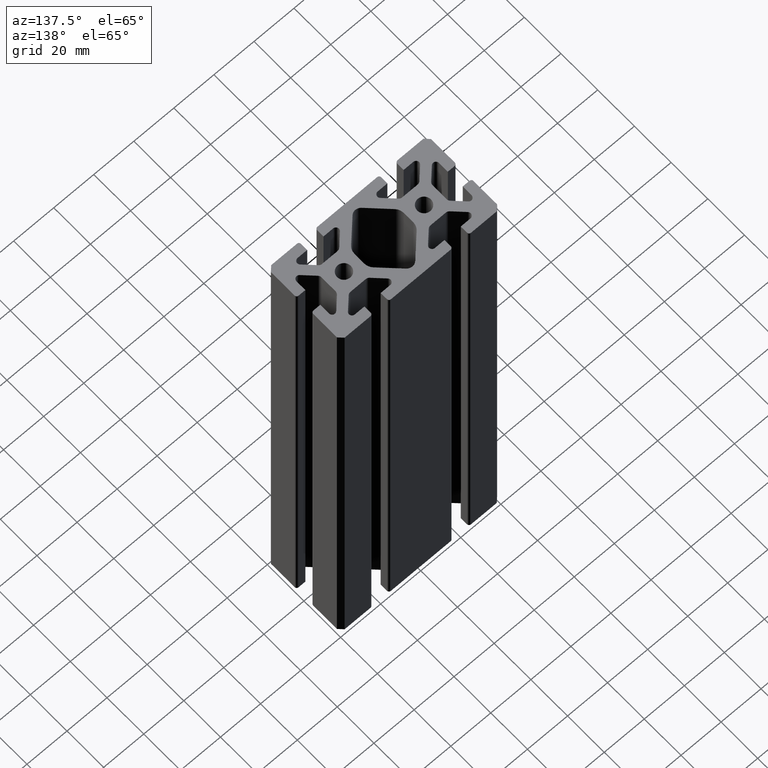
[diagram: clean part render]
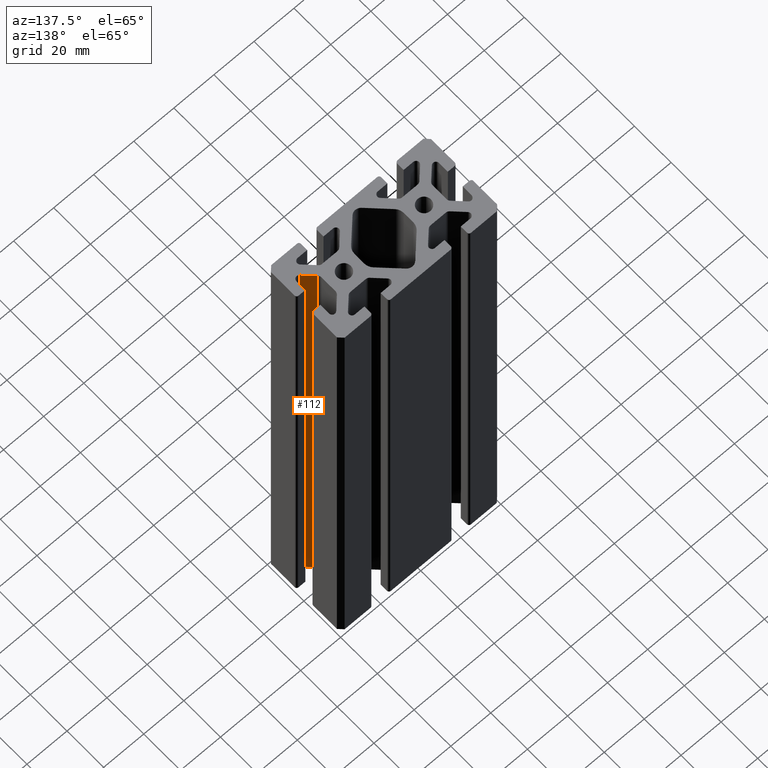
[diagram: same view with one face highlighted and labeled with its STEP entity id]
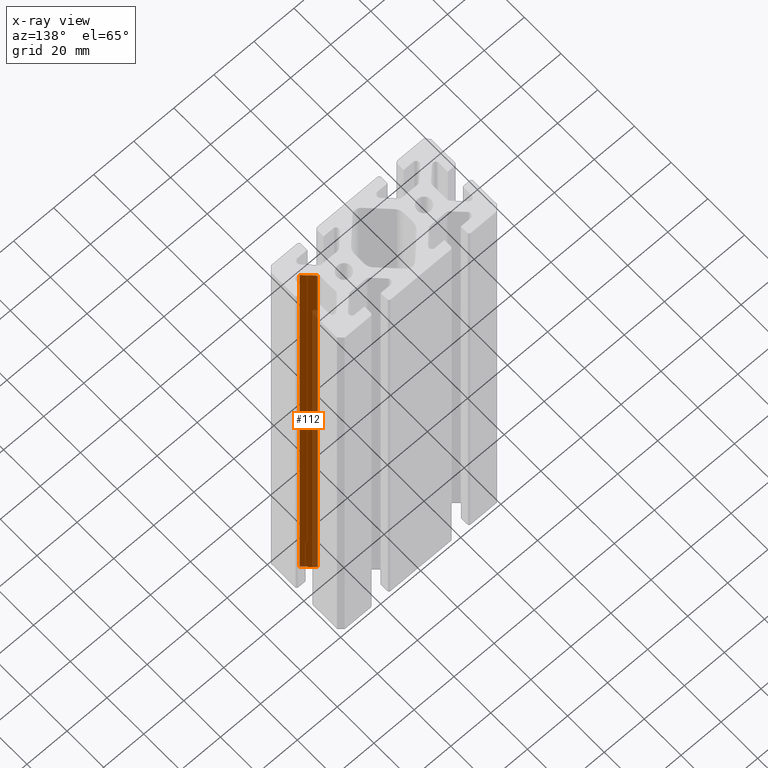
[diagram: x-ray of the same camera — body ghosted, the highlighted face saturated]
A machine part, auxiliary view. The second image highlights one B-rep face of the part: STEP entity #112.
The next image is the same camera in x-ray: the body ghosted, the highlighted face saturated — about 26% of this face is hidden behind the body in this view.
In plain terms, the highlighted planar face has unit normal (-0.7071, -0.7071, -0).
Its self-contained STEP definition (entity closure, byte-faithful):
#78 = PLANE ( 'NONE',  #3225 ) ;
#112 = ADVANCED_FACE ( 'NONE', ( #3574 ), #78, .F. ) ;
#134 = VECTOR ( 'NONE', #347, 1000.000000000000000 ) ;
#193 = VECTOR ( 'NONE', #3898, 1000.000000000000114 ) ;
#347 = DIRECTION ( 'NONE',  ( 0.000000000000000000, 0.000000000000000000, 1.000000000000000000 ) ) ;
#575 = VERTEX_POINT ( 'NONE', #3845 ) ;
#752 = EDGE_CURVE ( 'NONE', #1684, #1247, #2213, .T. ) ;
#835 = EDGE_CURVE ( 'NONE', #1684, #1403, #926, .T. ) ;
#926 = LINE ( 'NONE', #2195, #2326 ) ;
#1150 = CARTESIAN_POINT ( 'NONE',  ( 33.01442972820604638, -9.956523991189305534, -127.0000000000000000 ) ) ;
#1201 = EDGE_CURVE ( 'NONE', #1403, #575, #1306, .T. ) ;
#1247 = VERTEX_POINT ( 'NONE', #2269 ) ;
#1249 = DIRECTION ( 'NONE',  ( -0.7071067811865543451, 0.7071067811865408004, 0.000000000000000000 ) ) ;
#1267 = CARTESIAN_POINT ( 'NONE',  ( 33.01442972820604638, -9.956523991189305534, -127.0000000000000000 ) ) ;
#1306 = LINE ( 'NONE', #2547, #1377 ) ;
#1377 = VECTOR ( 'NONE', #3776, 1000.000000000000000 ) ;
#1403 = VERTEX_POINT ( 'NONE', #1571 ) ;
#1434 = LINE ( 'NONE', #2670, #193 ) ;
#1571 = CARTESIAN_POINT ( 'NONE',  ( 28.29122254966539529, -5.233316812648741490, -127.0000000000000000 ) ) ;
#1684 = VERTEX_POINT ( 'NONE', #1150 ) ;
#2195 = CARTESIAN_POINT ( 'NONE',  ( 11.52895286850814749, 11.52895286850818835, -127.0000000000000000 ) ) ;
#2213 = LINE ( 'NONE', #1267, #134 ) ;
#2269 = CARTESIAN_POINT ( 'NONE',  ( 33.01442972820604638, -9.956523991189305534, 127.0000000000000000 ) ) ;
#2282 = DIRECTION ( 'NONE',  ( -0.7071067811865409114, -0.7071067811865542341, -0.000000000000000000 ) ) ;
#2326 = VECTOR ( 'NONE', #1249, 1000.000000000000114 ) ;
#2547 = CARTESIAN_POINT ( 'NONE',  ( 28.29122254966539884, -5.233316812648739713, 127.0000000000000000 ) ) ;
#2670 = CARTESIAN_POINT ( 'NONE',  ( 11.52895286850814749, 11.52895286850818835, 127.0000000000000000 ) ) ;
#2678 = ORIENTED_EDGE ( 'NONE', *, *, #1201, .T. ) ;
#2926 = CARTESIAN_POINT ( 'NONE',  ( 11.52895286850814749, 11.52895286850818835, -127.0000000000000000 ) ) ;
#3224 = DIRECTION ( 'NONE',  ( -0.7071067811865541231, 0.7071067811865408004, 0.000000000000000000 ) ) ;
#3225 = AXIS2_PLACEMENT_3D ( 'NONE', #2926, #2282, #3224 ) ;
#3574 = FACE_OUTER_BOUND ( 'NONE', #3640, .T. ) ;
#3640 = EDGE_LOOP ( 'NONE', ( #3650, #2678, #3716, #3931 ) ) ;
#3650 = ORIENTED_EDGE ( 'NONE', *, *, #835, .T. ) ;
#3716 = ORIENTED_EDGE ( 'NONE', *, *, #3961, .F. ) ;
#3776 = DIRECTION ( 'NONE',  ( 0.000000000000000000, 0.000000000000000000, 1.000000000000000000 ) ) ;
#3845 = CARTESIAN_POINT ( 'NONE',  ( 28.29122254966539529, -5.233316812648741490, 127.0000000000000000 ) ) ;
#3898 = DIRECTION ( 'NONE',  ( -0.7071067811865543451, 0.7071067811865408004, 0.000000000000000000 ) ) ;
#3931 = ORIENTED_EDGE ( 'NONE', *, *, #752, .F. ) ;
#3961 = EDGE_CURVE ( 'NONE', #1247, #575, #1434, .T. ) ;